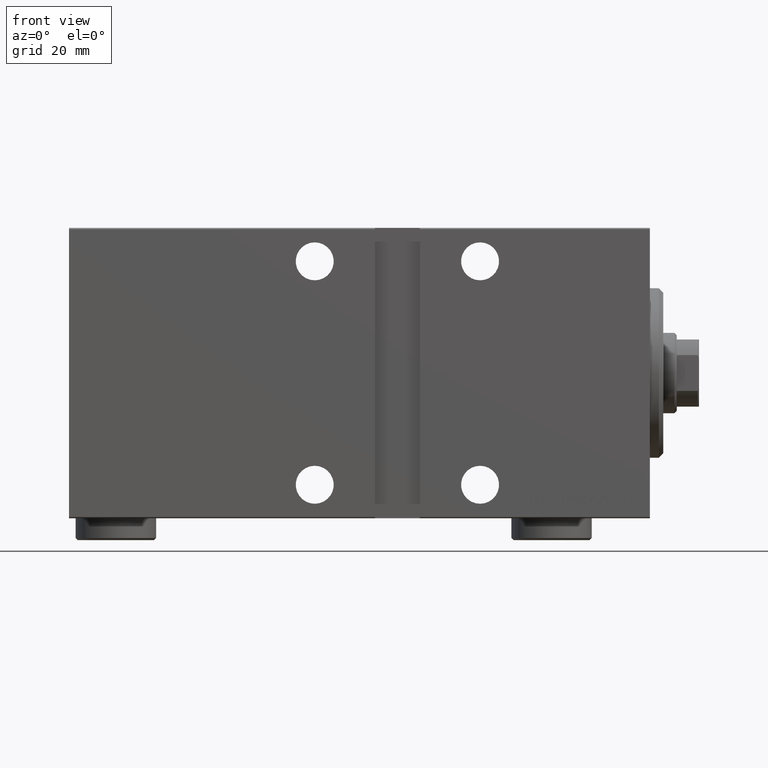
[diagram: clean part render]
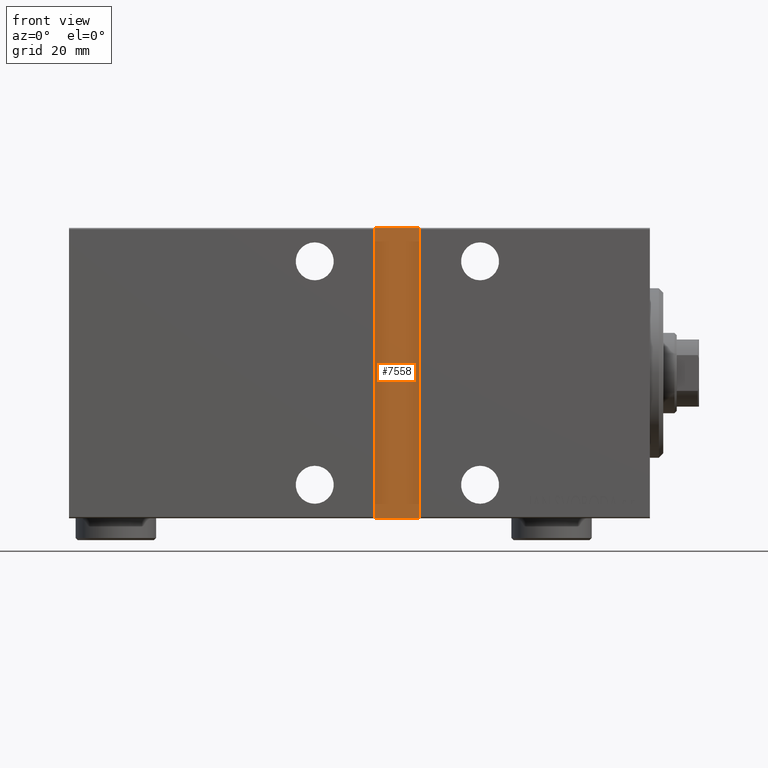
[diagram: same view with one face highlighted and labeled with its STEP entity id]
A machine part, front view. The second image highlights one B-rep face of the part: STEP entity #7558.
In plain terms, the highlighted planar face has unit normal (0, -1, -0).
Its self-contained STEP definition (entity closure, byte-faithful):
#1988 = CARTESIAN_POINT ( 'NONE',  ( 0.000000000000000000, 20.49999999999999645, 0.000000000000000000 ) ) ;
#2192 = DIRECTION ( 'NONE',  ( 1.000000000000000000, 0.000000000000000000, 0.000000000000000000 ) ) ;
#2979 = VERTEX_POINT ( 'NONE', #17147 ) ;
#3132 = EDGE_CURVE ( 'NONE', #2979, #24551, #34917, .T. ) ;
#3279 = VECTOR ( 'NONE', #8254, 1000.000000000000000 ) ;
#4481 = CARTESIAN_POINT ( 'NONE',  ( 61.50000000000000711, 20.49999999999999645, 32.50000000000000000 ) ) ;
#4946 = ORIENTED_EDGE ( 'NONE', *, *, #17757, .F. ) ;
#6245 = CARTESIAN_POINT ( 'NONE',  ( 51.50000000000001421, 20.49999999999999645, 32.50000000000000000 ) ) ;
#7558 = ADVANCED_FACE ( 'NONE', ( #42427 ), #8645, .T. ) ;
#8254 = DIRECTION ( 'NONE',  ( -2.135044278125300850E-16, 0.000000000000000000, -1.000000000000000000 ) ) ;
#8645 = PLANE ( 'NONE',  #25959 ) ;
#12156 = LINE ( 'NONE', #26357, #42978 ) ;
#13377 = EDGE_CURVE ( 'NONE', #18688, #2979, #42845, .T. ) ;
#15533 = DIRECTION ( 'NONE',  ( -0.000000000000000000, 1.000000000000000000, 0.000000000000000000 ) ) ;
#16659 = VECTOR ( 'NONE', #23142, 1000.000000000000000 ) ;
#17147 = CARTESIAN_POINT ( 'NONE',  ( 61.50000000000000711, 20.49999999999999645, 32.50000000000000000 ) ) ;
#17757 = EDGE_CURVE ( 'NONE', #18688, #34175, #20241, .T. ) ;
#18688 = VERTEX_POINT ( 'NONE', #35245 ) ;
#20241 = LINE ( 'NONE', #6245, #16659 ) ;
#20403 = CARTESIAN_POINT ( 'NONE',  ( 51.50000000000001421, 20.49999999999999645, -32.50000000000000000 ) ) ;
#23142 = DIRECTION ( 'NONE',  ( 0.000000000000000000, 0.000000000000000000, -1.000000000000000000 ) ) ;
#23959 = EDGE_CURVE ( 'NONE', #34175, #24551, #12156, .T. ) ;
#24219 = ORIENTED_EDGE ( 'NONE', *, *, #3132, .T. ) ;
#24551 = VERTEX_POINT ( 'NONE', #29964 ) ;
#25747 = DIRECTION ( 'NONE',  ( 0.000000000000000000, -0.000000000000000000, 1.000000000000000000 ) ) ;
#25959 = AXIS2_PLACEMENT_3D ( 'NONE', #1988, #15533, #25747 ) ;
#26357 = CARTESIAN_POINT ( 'NONE',  ( 51.50000000000001421, 20.49999999999999645, -32.50000000000000000 ) ) ;
#27929 = VECTOR ( 'NONE', #2192, 1000.000000000000000 ) ;
#28617 = CARTESIAN_POINT ( 'NONE',  ( 51.50000000000001421, 20.49999999999999645, 32.50000000000000000 ) ) ;
#29233 = ORIENTED_EDGE ( 'NONE', *, *, #23959, .F. ) ;
#29250 = DIRECTION ( 'NONE',  ( 1.000000000000000000, 0.000000000000000000, 0.000000000000000000 ) ) ;
#29964 = CARTESIAN_POINT ( 'NONE',  ( 61.50000000000000000, 20.50000000000000000, -32.50000000000000000 ) ) ;
#30543 = EDGE_LOOP ( 'NONE', ( #29233, #4946, #39137, #24219 ) ) ;
#34175 = VERTEX_POINT ( 'NONE', #20403 ) ;
#34917 = LINE ( 'NONE', #4481, #3279 ) ;
#35245 = CARTESIAN_POINT ( 'NONE',  ( 51.50000000000001421, 20.49999999999999645, 32.50000000000000000 ) ) ;
#39137 = ORIENTED_EDGE ( 'NONE', *, *, #13377, .T. ) ;
#42427 = FACE_OUTER_BOUND ( 'NONE', #30543, .T. ) ;
#42845 = LINE ( 'NONE', #28617, #27929 ) ;
#42978 = VECTOR ( 'NONE', #29250, 1000.000000000000000 ) ;